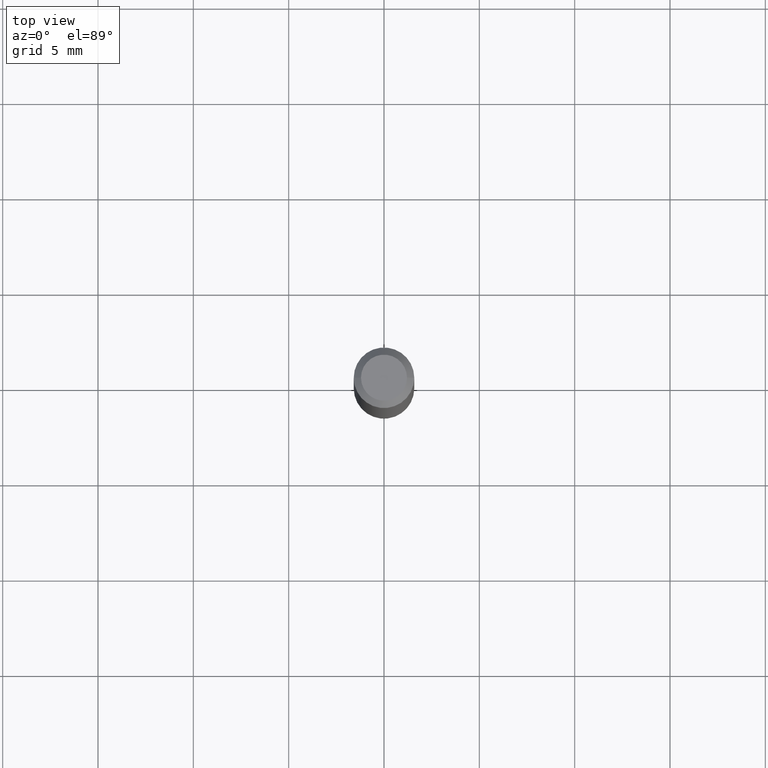
[diagram: clean part render]
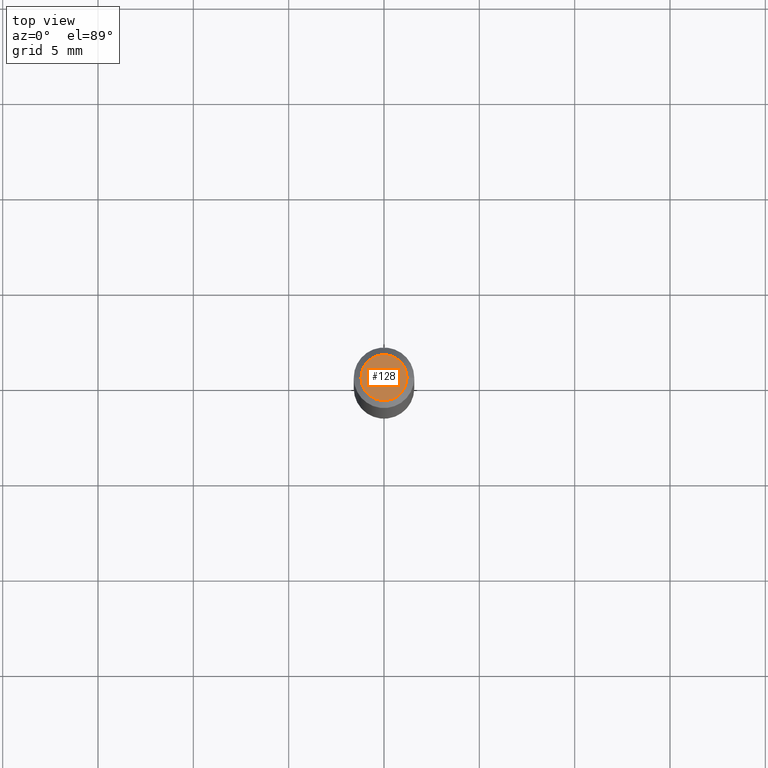
[diagram: same view with one face highlighted and labeled with its STEP entity id]
A machine part, top view. The second image highlights one B-rep face of the part: STEP entity #128.
In plain terms, the highlighted planar face has unit normal (0, -0, -1).
Its self-contained STEP definition (entity closure, byte-faithful):
#3 = AXIS2_PLACEMENT_3D ( 'NONE', #415, #164, #121 ) ;
#21 = CARTESIAN_POINT ( 'NONE',  ( 0.04749999999999999362, -4.035134999187576158E-16, 1.317956160873497667E-16 ) ) ;
#45 = ORIENTED_EDGE ( 'NONE', *, *, #171, .T. ) ;
#94 = AXIS2_PLACEMENT_3D ( 'NONE', #310, #422, #410 ) ;
#113 = VERTEX_POINT ( 'NONE', #21 ) ;
#121 = DIRECTION ( 'NONE',  ( -1.000000000000000000, 6.982962677686265922E-15, -4.876176775795935793E-29 ) ) ;
#128 = ADVANCED_FACE ( 'NONE', ( #173 ), #303, .F. ) ;
#146 = DIRECTION ( 'NONE',  ( -2.445468806185136597E-29, 3.491481338843145583E-15, 1.000000000000000000 ) ) ;
#164 = DIRECTION ( 'NONE',  ( 2.438088387897960049E-29, -3.491481338843145188E-15, -1.000000000000000000 ) ) ;
#171 = EDGE_CURVE ( 'NONE', #113, #453, #429, .T. ) ;
#173 = FACE_OUTER_BOUND ( 'NONE', #399, .T. ) ;
#175 = CIRCLE ( 'NONE', #434, 0.04749999999999999362 ) ;
#217 = DIRECTION ( 'NONE',  ( 1.000000000000000000, -6.982962677686267499E-15, 4.884662768193073002E-29 ) ) ;
#303 = PLANE ( 'NONE',  #3 ) ;
#310 = CARTESIAN_POINT ( 'NONE',  ( -3.223020679335594837E-45, 4.601619341103081537E-31, 1.317956160873471783E-16 ) ) ;
#360 = CARTESIAN_POINT ( 'NONE',  ( -3.223020679335594837E-45, 4.601619341103081537E-31, 1.317956160873471783E-16 ) ) ;
#397 = EDGE_CURVE ( 'NONE', #453, #113, #175, .T. ) ;
#399 = EDGE_LOOP ( 'NONE', ( #465, #45 ) ) ;
#410 = DIRECTION ( 'NONE',  ( 1.000000000000000000, -6.982962677686267499E-15, 4.884662768193073002E-29 ) ) ;
#415 = CARTESIAN_POINT ( 'NONE',  ( 3.316907271900976096E-16, 0.04749999999999999362, -9.994755555137580731E-17 ) ) ;
#422 = DIRECTION ( 'NONE',  ( -2.445468806185136597E-29, 3.491481338843145583E-15, 1.000000000000000000 ) ) ;
#429 = CIRCLE ( 'NONE', #94, 0.04749999999999999362 ) ;
#434 = AXIS2_PLACEMENT_3D ( 'NONE', #360, #146, #217 ) ;
#453 = VERTEX_POINT ( 'NONE', #460 ) ;
#460 = CARTESIAN_POINT ( 'NONE',  ( -0.04749999999999999362, 3.578768372314212971E-16, 1.317956160873447624E-16 ) ) ;
#465 = ORIENTED_EDGE ( 'NONE', *, *, #397, .T. ) ;